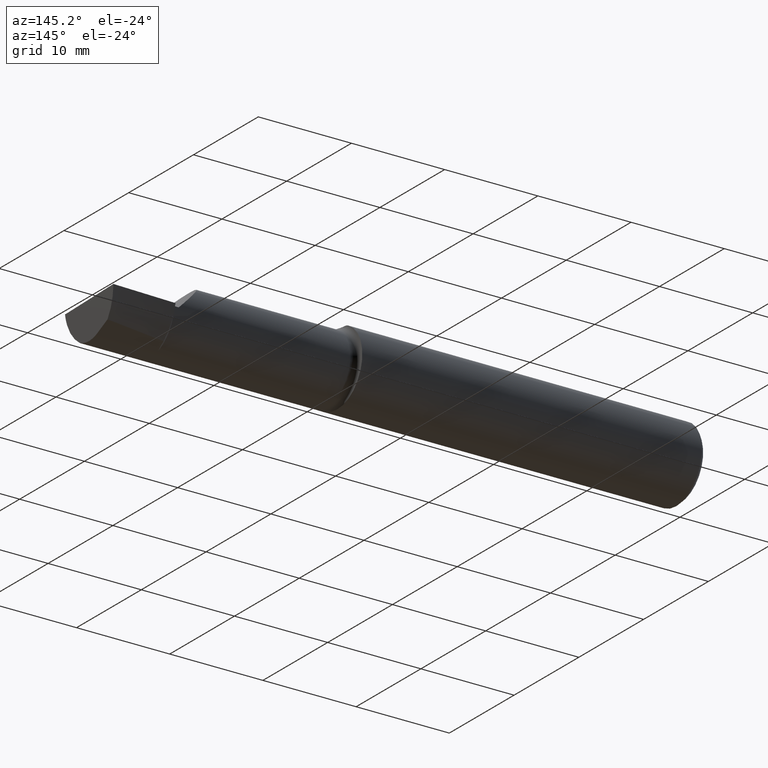
[diagram: clean part render]
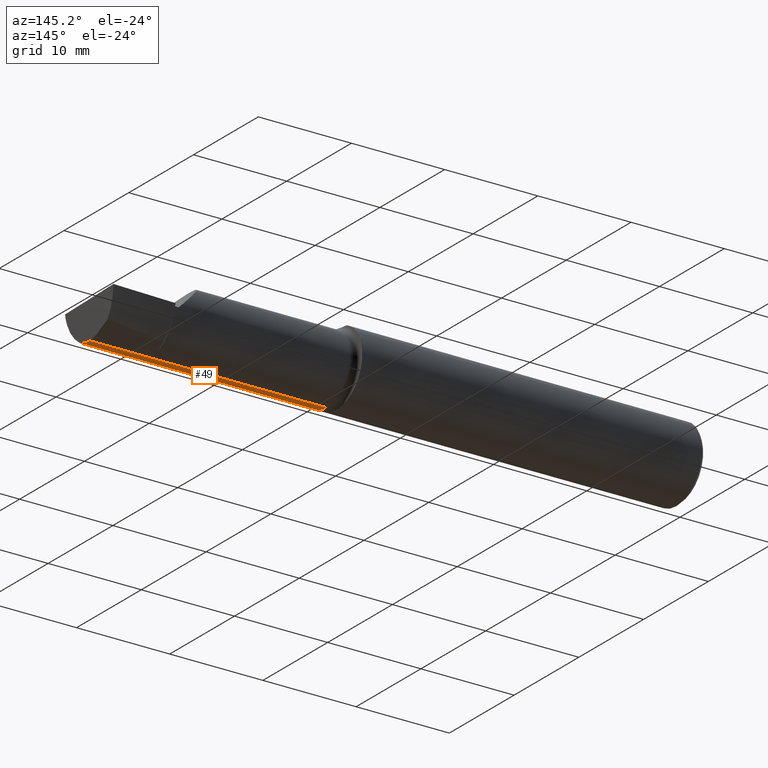
[diagram: same view with one face highlighted and labeled with its STEP entity id]
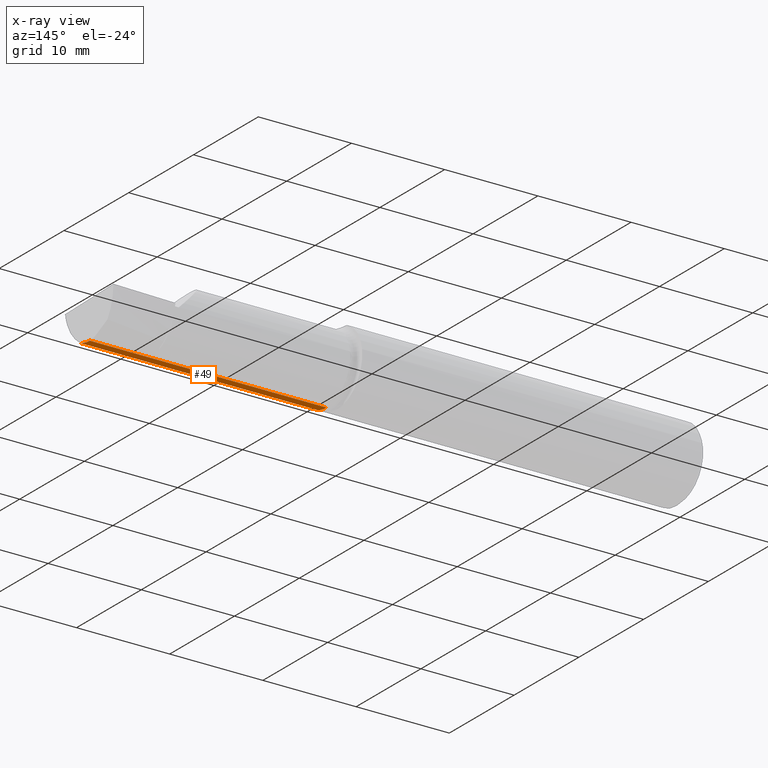
[diagram: x-ray of the same camera — body ghosted, the highlighted face saturated]
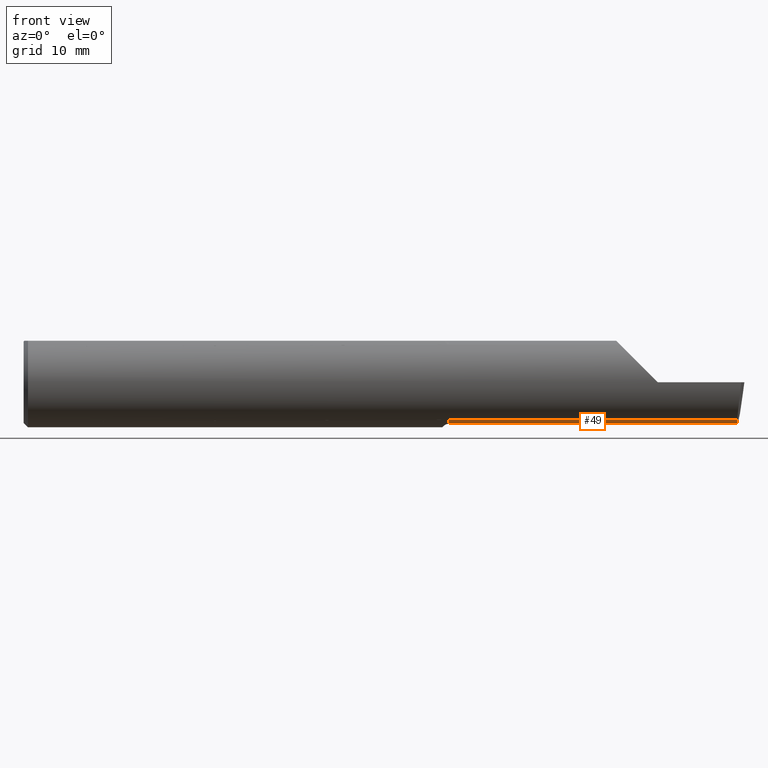
[diagram: same view with one face highlighted and labeled with its STEP entity id]
A machine part, auxiliary view. The second image highlights one B-rep face of the part: STEP entity #49.
The next image is the same camera in x-ray: the body ghosted, the highlighted face saturated — about 0% of this face is hidden behind the body in this view.
A second angle (front view) of the same face is appended — the face is thin or edge-on in the first view.
In plain terms, the highlighted cylindrical surface (partial cylindrical patch) has radius 3.6551 mm, axis along (-1, -0, -0).
Its self-contained STEP definition (entity closure, byte-faithful):
#15 = EDGE_CURVE ( 'NONE', #652, #605, #627, .T. ) ;
#27 = CARTESIAN_POINT ( 'NONE',  ( 1.474999999999999867, -0.02500000000000000486, -0.1439000000000000556 ) ) ;
#43 = EDGE_CURVE ( 'NONE', #157, #605, #470, .T. ) ;
#49 = ADVANCED_FACE ( 'NONE', ( #174 ), #342, .T. ) ;
#60 = CARTESIAN_POINT ( 'NONE',  ( 2.476130359589496788, -0.02499999999999999098, -0.1439000000000001112 ) ) ;
#71 = ORIENTED_EDGE ( 'NONE', *, *, #43, .F. ) ;
#80 = VECTOR ( 'NONE', #168, 39.37007874015748143 ) ;
#113 = LINE ( 'NONE', #173, #197 ) ;
#127 = DIRECTION ( 'NONE',  ( 0.000000000000000000, 0.000000000000000000, 1.000000000000000000 ) ) ;
#133 = CARTESIAN_POINT ( 'NONE',  ( 2.476130359589496788, -0.02499999999999999098, -0.1439000000000001112 ) ) ;
#157 = VERTEX_POINT ( 'NONE', #27 ) ;
#168 = DIRECTION ( 'NONE',  ( -1.000000000000000000, -0.000000000000000000, -0.000000000000000000 ) ) ;
#173 = CARTESIAN_POINT ( 'NONE',  ( 0.000000000000000000, -0.02499999999999999098, -0.1439000000000001112 ) ) ;
#174 = FACE_OUTER_BOUND ( 'NONE', #647, .T. ) ;
#197 = VECTOR ( 'NONE', #389, 39.37007874015748143 ) ;
#273 = CARTESIAN_POINT ( 'NONE',  ( 1.474999999999999867, -0.02500000000000000486, 0.000000000000000000 ) ) ;
#277 = CARTESIAN_POINT ( 'NONE',  ( 2.475247014433751946, -0.06661082633900398953, -0.1393521354400291679 ) ) ;
#279 = DIRECTION ( 'NONE',  ( -1.000000000000000000, -0.000000000000000000, -0.000000000000000000 ) ) ;
#281 = ORIENTED_EDGE ( 'NONE', *, *, #15, .T. ) ;
#285 = DIRECTION ( 'NONE',  ( 0.000000000000000000, 0.000000000000000000, 1.000000000000000000 ) ) ;
#301 = CARTESIAN_POINT ( 'NONE',  ( 1.474999999999999867, -0.08569999999999930451, -0.1304711462354803397 ) ) ;
#323 = AXIS2_PLACEMENT_3D ( 'NONE', #273, #279, #127 ) ;
#342 = CYLINDRICAL_SURFACE ( 'NONE', #351, 0.1439000000000001112 ) ;
#351 = AXIS2_PLACEMENT_3D ( 'NONE', #560, #580, #285 ) ;
#352 = ORIENTED_EDGE ( 'NONE', *, *, #354, .F. ) ;
#354 = EDGE_CURVE ( 'NONE', #502, #157, #113, .T. ) ;
#379 = EDGE_CURVE ( 'NONE', #652, #502, #473, .T. ) ;
#389 = DIRECTION ( 'NONE',  ( -1.000000000000000000, -0.000000000000000000, -0.000000000000000000 ) ) ;
#470 = CIRCLE ( 'NONE', #323, 0.1439000000000000556 ) ;
#473 =( BOUNDED_CURVE ( )  B_SPLINE_CURVE ( 3, ( #676, #277, #724, #60 ),
 .UNSPECIFIED., .F., .T. ) 
 B_SPLINE_CURVE_WITH_KNOTS ( ( 4, 4 ),
 ( 6.122674497807369498, 6.558126988897922338 ),
 .UNSPECIFIED. ) 
 CURVE ( )  GEOMETRIC_REPRESENTATION_ITEM ( )  RATIONAL_B_SPLINE_CURVE ( ( 1.000000000000000000, 0.9842607512044747597, 0.9842607512044747597, 1.000000000000000000 ) ) 
 REPRESENTATION_ITEM ( '' )  );
#476 = CARTESIAN_POINT ( 'NONE',  ( 2.475676552398977215, -0.08569999999999922125, -0.1304711462354804230 ) ) ;
#502 = VERTEX_POINT ( 'NONE', #133 ) ;
#560 = CARTESIAN_POINT ( 'NONE',  ( 0.000000000000000000, -0.02500000000000000486, 0.000000000000000000 ) ) ;
#563 = CARTESIAN_POINT ( 'NONE',  ( 1.847499999999999920, -0.08569999999999922125, -0.1304711462354804230 ) ) ;
#580 = DIRECTION ( 'NONE',  ( -1.000000000000000000, -0.000000000000000000, -0.000000000000000000 ) ) ;
#605 = VERTEX_POINT ( 'NONE', #301 ) ;
#627 = LINE ( 'NONE', #563, #80 ) ;
#647 = EDGE_LOOP ( 'NONE', ( #352, #712, #281, #71 ) ) ;
#652 = VERTEX_POINT ( 'NONE', #476 ) ;
#676 = CARTESIAN_POINT ( 'NONE',  ( 2.475676552398977215, -0.08569999999999922125, -0.1304711462354804230 ) ) ;
#712 = ORIENTED_EDGE ( 'NONE', *, *, #379, .F. ) ;
#724 = CARTESIAN_POINT ( 'NONE',  ( 2.475400702430881950, -0.04605394310600616214, -0.1439000000000001112 ) ) ;